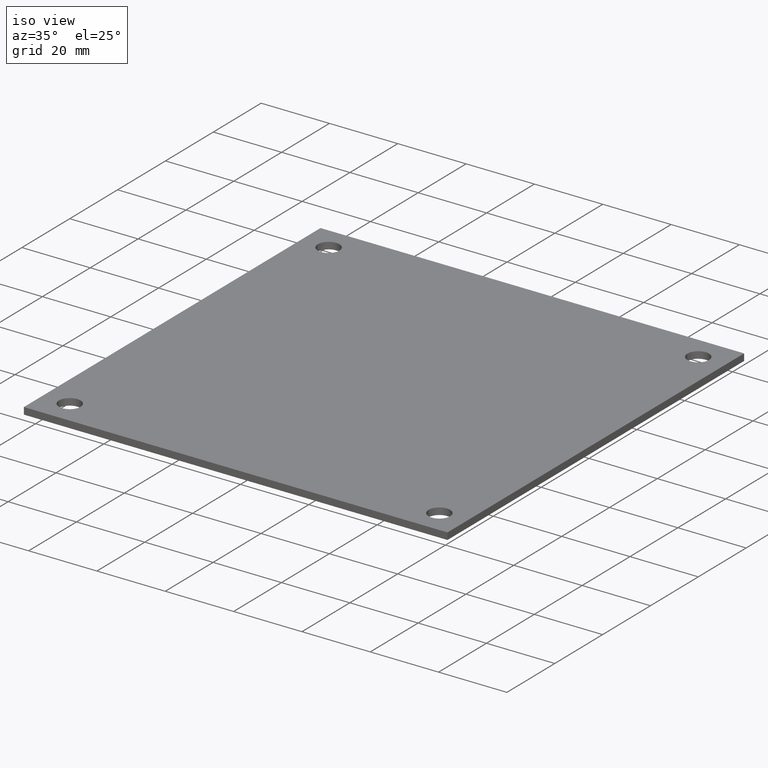
[diagram: clean part render]
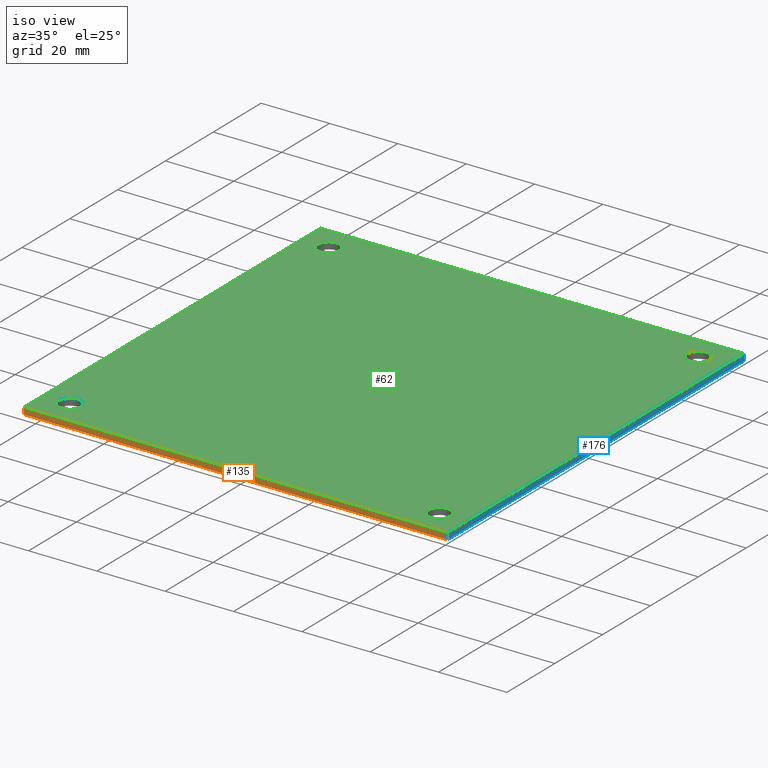
[diagram: same view with three faces highlighted in distinct colors, each labeled with its STEP entity id]
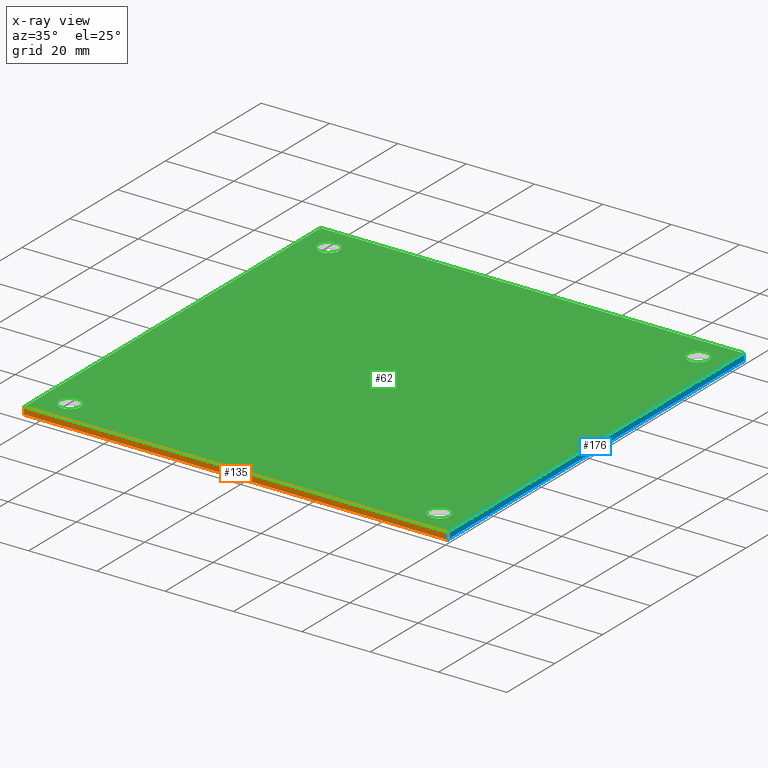
[diagram: x-ray of the same camera — body ghosted, the three highlighted faces saturated]
A machine part, iso view with three faces highlighted in distinct colors.
The next image is the same camera in x-ray (body ghosted, the three faces saturated) — at least one of them is partly hidden behind the body in this view.
Their STEP definitions:

[orange] entity #135 — the highlighted planar face has unit normal (0, 1, 0).
#67 = EDGE_CURVE ( 'NONE', #103, #107, #297, .T. ) ;
#68 = VERTEX_POINT ( 'NONE', #288 ) ;
#77 = VERTEX_POINT ( 'NONE', #363 ) ;
#93 = EDGE_CURVE ( 'NONE', #77, #68, #477, .T. ) ;
#103 = VERTEX_POINT ( 'NONE', #453 ) ;
#107 = VERTEX_POINT ( 'NONE', #358 ) ;
#123 = EDGE_CURVE ( 'NONE', #77, #103, #344, .T. ) ;
#129 = ORIENTED_EDGE ( 'NONE', *, *, #197, .F. ) ;
#130 = ORIENTED_EDGE ( 'NONE', *, *, #67, .T. ) ;
#131 = EDGE_LOOP ( 'NONE', ( #130, #129, #173, #180 ) ) ;
#135 = ADVANCED_FACE ( 'NONE', ( #430 ), #429, .F. ) ;
#173 = ORIENTED_EDGE ( 'NONE', *, *, #93, .F. ) ;
#180 = ORIENTED_EDGE ( 'NONE', *, *, #123, .T. ) ;
#197 = EDGE_CURVE ( 'NONE', #68, #107, #386, .T. ) ;
#288 = CARTESIAN_POINT ( 'NONE',  ( 62.00000000000000700, -61.99999999999999300, 2.000000000000000000 ) ) ;
#289 = DIRECTION ( 'NONE',  ( 1.000000000000000000, 0.0000000000000000000, 0.0000000000000000000 ) ) ;
#290 = VECTOR ( 'NONE', #289, 1000.000000000000000 ) ;
#291 = CARTESIAN_POINT ( 'NONE',  ( -62.00000000000000700, -61.99999999999999300, 0.0000000000000000000 ) ) ;
#297 = LINE ( 'NONE', #291, #290 ) ;
#342 = VECTOR ( 'NONE', #447, 1000.000000000000000 ) ;
#343 = CARTESIAN_POINT ( 'NONE',  ( -62.00000000000000700, -61.99999999999999300, 2.000000000000000000 ) ) ;
#344 = LINE ( 'NONE', #343, #342 ) ;
#358 = CARTESIAN_POINT ( 'NONE',  ( 62.00000000000000700, -61.99999999999999300, 0.0000000000000000000 ) ) ;
#363 = CARTESIAN_POINT ( 'NONE',  ( -62.00000000000000700, -61.99999999999999300, 2.000000000000000000 ) ) ;
#383 = DIRECTION ( 'NONE',  ( -0.0000000000000000000, -0.0000000000000000000, -1.000000000000000000 ) ) ;
#384 = VECTOR ( 'NONE', #383, 1000.000000000000000 ) ;
#385 = CARTESIAN_POINT ( 'NONE',  ( 62.00000000000000700, -61.99999999999999300, 2.000000000000000000 ) ) ;
#386 = LINE ( 'NONE', #385, #384 ) ;
#424 = DIRECTION ( 'NONE',  ( 0.0000000000000000000, -0.0000000000000000000, 1.000000000000000000 ) ) ;
#425 = DIRECTION ( 'NONE',  ( 0.0000000000000000000, 1.000000000000000000, 0.0000000000000000000 ) ) ;
#426 = CARTESIAN_POINT ( 'NONE',  ( -62.00000000000000700, -61.99999999999999300, 2.000000000000000000 ) ) ;
#428 = AXIS2_PLACEMENT_3D ( 'NONE', #426, #425, #424 ) ;
#429 = PLANE ( 'NONE',  #428 ) ;
#430 = FACE_OUTER_BOUND ( 'NONE', #131, .T. ) ;
#447 = DIRECTION ( 'NONE',  ( -0.0000000000000000000, -0.0000000000000000000, -1.000000000000000000 ) ) ;
#453 = CARTESIAN_POINT ( 'NONE',  ( -62.00000000000000700, -61.99999999999999300, 0.0000000000000000000 ) ) ;
#474 = DIRECTION ( 'NONE',  ( 1.000000000000000000, 0.0000000000000000000, 0.0000000000000000000 ) ) ;
#475 = VECTOR ( 'NONE', #474, 1000.000000000000000 ) ;
#476 = CARTESIAN_POINT ( 'NONE',  ( -62.00000000000000700, -61.99999999999999300, 2.000000000000000000 ) ) ;
#477 = LINE ( 'NONE', #476, #475 ) ;

[blue] entity #176 — the highlighted planar face has unit normal (-1, -0, 0).
#68 = VERTEX_POINT ( 'NONE', #288 ) ;
#71 = VERTEX_POINT ( 'NONE', #282 ) ;
#76 = EDGE_CURVE ( 'NONE', #68, #71, #331, .T. ) ;
#90 = EDGE_CURVE ( 'NONE', #107, #106, #481, .T. ) ;
#106 = VERTEX_POINT ( 'NONE', #448 ) ;
#107 = VERTEX_POINT ( 'NONE', #358 ) ;
#150 = EDGE_LOOP ( 'NONE', ( #151, #152, #154, #155 ) ) ;
#151 = ORIENTED_EDGE ( 'NONE', *, *, #90, .T. ) ;
#152 = ORIENTED_EDGE ( 'NONE', *, *, #153, .F. ) ;
#153 = EDGE_CURVE ( 'NONE', #71, #106, #418, .T. ) ;
#154 = ORIENTED_EDGE ( 'NONE', *, *, #76, .F. ) ;
#155 = ORIENTED_EDGE ( 'NONE', *, *, #197, .T. ) ;
#176 = ADVANCED_FACE ( 'NONE', ( #398 ), #397, .F. ) ;
#197 = EDGE_CURVE ( 'NONE', #68, #107, #386, .T. ) ;
#282 = CARTESIAN_POINT ( 'NONE',  ( 62.00000000000000000, 62.00000000000000000, 2.000000000000000000 ) ) ;
#288 = CARTESIAN_POINT ( 'NONE',  ( 62.00000000000000700, -61.99999999999999300, 2.000000000000000000 ) ) ;
#329 = VECTOR ( 'NONE', #364, 1000.000000000000000 ) ;
#330 = CARTESIAN_POINT ( 'NONE',  ( 62.00000000000000000, 62.00000000000000000, 2.000000000000000000 ) ) ;
#331 = LINE ( 'NONE', #330, #329 ) ;
#358 = CARTESIAN_POINT ( 'NONE',  ( 62.00000000000000700, -61.99999999999999300, 0.0000000000000000000 ) ) ;
#364 = DIRECTION ( 'NONE',  ( -5.595882180570345400E-017, 1.000000000000000000, -0.0000000000000000000 ) ) ;
#383 = DIRECTION ( 'NONE',  ( -0.0000000000000000000, -0.0000000000000000000, -1.000000000000000000 ) ) ;
#384 = VECTOR ( 'NONE', #383, 1000.000000000000000 ) ;
#385 = CARTESIAN_POINT ( 'NONE',  ( 62.00000000000000700, -61.99999999999999300, 2.000000000000000000 ) ) ;
#386 = LINE ( 'NONE', #385, #384 ) ;
#393 = DIRECTION ( 'NONE',  ( 5.595882180570345400E-017, -1.000000000000000000, 0.0000000000000000000 ) ) ;
#394 = DIRECTION ( 'NONE',  ( -1.000000000000000000, -5.595882180570345400E-017, 0.0000000000000000000 ) ) ;
#395 = CARTESIAN_POINT ( 'NONE',  ( 62.00000000000000000, 62.00000000000000000, 2.000000000000000000 ) ) ;
#396 = AXIS2_PLACEMENT_3D ( 'NONE', #395, #394, #393 ) ;
#397 = PLANE ( 'NONE',  #396 ) ;
#398 = FACE_OUTER_BOUND ( 'NONE', #150, .T. ) ;
#415 = VECTOR ( 'NONE', #416, 1000.000000000000000 ) ;
#416 = DIRECTION ( 'NONE',  ( -0.0000000000000000000, -0.0000000000000000000, -1.000000000000000000 ) ) ;
#417 = CARTESIAN_POINT ( 'NONE',  ( 62.00000000000000000, 62.00000000000000000, 2.000000000000000000 ) ) ;
#418 = LINE ( 'NONE', #417, #415 ) ;
#448 = CARTESIAN_POINT ( 'NONE',  ( 62.00000000000000000, 62.00000000000000000, 0.0000000000000000000 ) ) ;
#478 = DIRECTION ( 'NONE',  ( -5.595882180570345400E-017, 1.000000000000000000, -0.0000000000000000000 ) ) ;
#479 = VECTOR ( 'NONE', #478, 1000.000000000000000 ) ;
#480 = CARTESIAN_POINT ( 'NONE',  ( 62.00000000000000000, 62.00000000000000000, 0.0000000000000000000 ) ) ;
#481 = LINE ( 'NONE', #480, #479 ) ;

[green] entity #62 — the highlighted planar face has unit normal (0, 0, 1).
#3 = VERTEX_POINT ( 'NONE', #182 ) ;
#8 = VERTEX_POINT ( 'NONE', #164 ) ;
#13 = EDGE_CURVE ( 'NONE', #61, #8, #190, .T. ) ;
#19 = VERTEX_POINT ( 'NONE', #220 ) ;
#24 = EDGE_CURVE ( 'NONE', #19, #3, #201, .T. ) ;
#25 = VERTEX_POINT ( 'NONE', #274 ) ;
#37 = EDGE_CURVE ( 'NONE', #38, #111, #223, .T. ) ;
#38 = VERTEX_POINT ( 'NONE', #252 ) ;
#40 = EDGE_LOOP ( 'NONE', ( #108, #78, #75, #84 ) ) ;
#41 = VERTEX_POINT ( 'NONE', #251 ) ;
#44 = ORIENTED_EDGE ( 'NONE', *, *, #45, .F. ) ;
#45 = EDGE_CURVE ( 'NONE', #3, #19, #244, .T. ) ;
#47 = EDGE_CURVE ( 'NONE', #41, #25, #314, .T. ) ;
#55 = ORIENTED_EDGE ( 'NONE', *, *, #13, .F. ) ;
#56 = ORIENTED_EDGE ( 'NONE', *, *, #63, .F. ) ;
#57 = EDGE_LOOP ( 'NONE', ( #55, #56 ) ) ;
#58 = EDGE_LOOP ( 'NONE', ( #60, #44 ) ) ;
#60 = ORIENTED_EDGE ( 'NONE', *, *, #24, .F. ) ;
#61 = VERTEX_POINT ( 'NONE', #312 ) ;
#62 = ADVANCED_FACE ( 'NONE', ( #311, #308, #307, #306, #305 ), #303, .T. ) ;
#63 = EDGE_CURVE ( 'NONE', #8, #61, #296, .T. ) ;
#68 = VERTEX_POINT ( 'NONE', #288 ) ;
#71 = VERTEX_POINT ( 'NONE', #282 ) ;
#72 = EDGE_CURVE ( 'NONE', #83, #77, #185, .T. ) ;
#75 = ORIENTED_EDGE ( 'NONE', *, *, #76, .T. ) ;
#76 = EDGE_CURVE ( 'NONE', #68, #71, #331, .T. ) ;
#77 = VERTEX_POINT ( 'NONE', #363 ) ;
#78 = ORIENTED_EDGE ( 'NONE', *, *, #93, .T. ) ;
#79 = EDGE_CURVE ( 'NONE', #25, #41, #333, .T. ) ;
#80 = ORIENTED_EDGE ( 'NONE', *, *, #47, .F. ) ;
#81 = ORIENTED_EDGE ( 'NONE', *, *, #79, .F. ) ;
#82 = EDGE_LOOP ( 'NONE', ( #80, #81 ) ) ;
#83 = VERTEX_POINT ( 'NONE', #338 ) ;
#84 = ORIENTED_EDGE ( 'NONE', *, *, #85, .T. ) ;
#85 = EDGE_CURVE ( 'NONE', #71, #83, #337, .T. ) ;
#88 = EDGE_LOOP ( 'NONE', ( #94, #95 ) ) ;
#93 = EDGE_CURVE ( 'NONE', #77, #68, #477, .T. ) ;
#94 = ORIENTED_EDGE ( 'NONE', *, *, #37, .F. ) ;
#95 = ORIENTED_EDGE ( 'NONE', *, *, #96, .F. ) ;
#96 = EDGE_CURVE ( 'NONE', #111, #38, #473, .T. ) ;
#108 = ORIENTED_EDGE ( 'NONE', *, *, #72, .T. ) ;
#111 = VERTEX_POINT ( 'NONE', #356 ) ;
#149 = DIRECTION ( 'NONE',  ( 1.000000000000000000, 0.0000000000000000000, 0.0000000000000000000 ) ) ;
#164 = CARTESIAN_POINT ( 'NONE',  ( -50.92499999999999700, -54.10000000000000900, 2.000000000000000000 ) ) ;
#182 = CARTESIAN_POINT ( 'NONE',  ( 57.27500000000000600, 54.10000000000000900, 2.000000000000000000 ) ) ;
#183 = DIRECTION ( 'NONE',  ( -1.119176436114069100E-016, -1.000000000000000000, 0.0000000000000000000 ) ) ;
#184 = CARTESIAN_POINT ( 'NONE',  ( -61.99999999999999300, 62.00000000000000700, 2.000000000000000000 ) ) ;
#185 = LINE ( 'NONE', #184, #245 ) ;
#186 = DIRECTION ( 'NONE',  ( 1.000000000000000000, 0.0000000000000000000, 0.0000000000000000000 ) ) ;
#187 = DIRECTION ( 'NONE',  ( 0.0000000000000000000, 0.0000000000000000000, 1.000000000000000000 ) ) ;
#188 = CARTESIAN_POINT ( 'NONE',  ( -54.09999999999999400, -54.10000000000000900, 2.000000000000000000 ) ) ;
#189 = AXIS2_PLACEMENT_3D ( 'NONE', #188, #187, #186 ) ;
#190 = CIRCLE ( 'NONE', #189, 3.174999999999997200 ) ;
#201 = CIRCLE ( 'NONE', #273, 3.174999999999997200 ) ;
#220 = CARTESIAN_POINT ( 'NONE',  ( 50.92500000000001100, 54.10000000000000900, 2.000000000000000000 ) ) ;
#223 = CIRCLE ( 'NONE', #256, 3.174999999999997200 ) ;
#241 = DIRECTION ( 'NONE',  ( 0.0000000000000000000, 0.0000000000000000000, 1.000000000000000000 ) ) ;
#242 = CARTESIAN_POINT ( 'NONE',  ( 54.10000000000000900, 54.10000000000000900, 2.000000000000000000 ) ) ;
#243 = AXIS2_PLACEMENT_3D ( 'NONE', #242, #241, #149 ) ;
#244 = CIRCLE ( 'NONE', #243, 3.174999999999997200 ) ;
#245 = VECTOR ( 'NONE', #183, 1000.000000000000000 ) ;
#251 = CARTESIAN_POINT ( 'NONE',  ( -57.27499999999999100, 54.10000000000000900, 2.000000000000000000 ) ) ;
#252 = CARTESIAN_POINT ( 'NONE',  ( 50.92500000000001800, -54.10000000000000900, 2.000000000000000000 ) ) ;
#253 = DIRECTION ( 'NONE',  ( 1.000000000000000000, 0.0000000000000000000, 0.0000000000000000000 ) ) ;
#254 = DIRECTION ( 'NONE',  ( 0.0000000000000000000, 0.0000000000000000000, 1.000000000000000000 ) ) ;
#255 = CARTESIAN_POINT ( 'NONE',  ( 54.10000000000001600, -54.10000000000000900, 2.000000000000000000 ) ) ;
#256 = AXIS2_PLACEMENT_3D ( 'NONE', #255, #254, #253 ) ;
#270 = DIRECTION ( 'NONE',  ( 1.000000000000000000, 0.0000000000000000000, 0.0000000000000000000 ) ) ;
#271 = DIRECTION ( 'NONE',  ( 0.0000000000000000000, 0.0000000000000000000, 1.000000000000000000 ) ) ;
#272 = CARTESIAN_POINT ( 'NONE',  ( 54.10000000000000900, 54.10000000000000900, 2.000000000000000000 ) ) ;
#273 = AXIS2_PLACEMENT_3D ( 'NONE', #272, #271, #270 ) ;
#274 = CARTESIAN_POINT ( 'NONE',  ( -50.92499999999999700, 54.10000000000000900, 2.000000000000000000 ) ) ;
#282 = CARTESIAN_POINT ( 'NONE',  ( 62.00000000000000000, 62.00000000000000000, 2.000000000000000000 ) ) ;
#288 = CARTESIAN_POINT ( 'NONE',  ( 62.00000000000000700, -61.99999999999999300, 2.000000000000000000 ) ) ;
#292 = DIRECTION ( 'NONE',  ( 1.000000000000000000, 0.0000000000000000000, 0.0000000000000000000 ) ) ;
#293 = DIRECTION ( 'NONE',  ( 1.000000000000000000, 0.0000000000000000000, 0.0000000000000000000 ) ) ;
#294 = DIRECTION ( 'NONE',  ( 0.0000000000000000000, 0.0000000000000000000, 1.000000000000000000 ) ) ;
#295 = AXIS2_PLACEMENT_3D ( 'NONE', #301, #294, #293 ) ;
#296 = CIRCLE ( 'NONE', #295, 3.174999999999997200 ) ;
#298 = DIRECTION ( 'NONE',  ( 1.000000000000000000, 0.0000000000000000000, -0.0000000000000000000 ) ) ;
#299 = DIRECTION ( 'NONE',  ( 0.0000000000000000000, 0.0000000000000000000, 1.000000000000000000 ) ) ;
#300 = CARTESIAN_POINT ( 'NONE',  ( -61.99999999999999300, 62.00000000000000700, 2.000000000000000000 ) ) ;
#301 = CARTESIAN_POINT ( 'NONE',  ( -54.09999999999999400, -54.10000000000000900, 2.000000000000000000 ) ) ;
#302 = AXIS2_PLACEMENT_3D ( 'NONE', #300, #299, #298 ) ;
#303 = PLANE ( 'NONE',  #302 ) ;
#304 = CARTESIAN_POINT ( 'NONE',  ( -54.09999999999999400, 54.10000000000000900, 2.000000000000000000 ) ) ;
#305 = FACE_BOUND ( 'NONE', #88, .T. ) ;
#306 = FACE_BOUND ( 'NONE', #82, .T. ) ;
#307 = FACE_OUTER_BOUND ( 'NONE', #40, .T. ) ;
#308 = FACE_BOUND ( 'NONE', #58, .T. ) ;
#311 = FACE_BOUND ( 'NONE', #57, .T. ) ;
#312 = CARTESIAN_POINT ( 'NONE',  ( -57.27499999999999100, -54.10000000000000900, 2.000000000000000000 ) ) ;
#314 = CIRCLE ( 'NONE', #318, 3.174999999999997200 ) ;
#318 = AXIS2_PLACEMENT_3D ( 'NONE', #304, #328, #292 ) ;
#328 = DIRECTION ( 'NONE',  ( 0.0000000000000000000, 0.0000000000000000000, 1.000000000000000000 ) ) ;
#329 = VECTOR ( 'NONE', #364, 1000.000000000000000 ) ;
#330 = CARTESIAN_POINT ( 'NONE',  ( 62.00000000000000000, 62.00000000000000000, 2.000000000000000000 ) ) ;
#331 = LINE ( 'NONE', #330, #329 ) ;
#332 = AXIS2_PLACEMENT_3D ( 'NONE', #341, #340, #339 ) ;
#333 = CIRCLE ( 'NONE', #332, 3.174999999999997200 ) ;
#335 = VECTOR ( 'NONE', #482, 1000.000000000000000 ) ;
#336 = CARTESIAN_POINT ( 'NONE',  ( -61.99999999999999300, 62.00000000000000700, 2.000000000000000000 ) ) ;
#337 = LINE ( 'NONE', #336, #335 ) ;
#338 = CARTESIAN_POINT ( 'NONE',  ( -61.99999999999999300, 62.00000000000000700, 2.000000000000000000 ) ) ;
#339 = DIRECTION ( 'NONE',  ( 1.000000000000000000, 0.0000000000000000000, 0.0000000000000000000 ) ) ;
#340 = DIRECTION ( 'NONE',  ( 0.0000000000000000000, 0.0000000000000000000, 1.000000000000000000 ) ) ;
#341 = CARTESIAN_POINT ( 'NONE',  ( -54.09999999999999400, 54.10000000000000900, 2.000000000000000000 ) ) ;
#356 = CARTESIAN_POINT ( 'NONE',  ( 57.27500000000001300, -54.10000000000000900, 2.000000000000000000 ) ) ;
#363 = CARTESIAN_POINT ( 'NONE',  ( -62.00000000000000700, -61.99999999999999300, 2.000000000000000000 ) ) ;
#364 = DIRECTION ( 'NONE',  ( -5.595882180570345400E-017, 1.000000000000000000, -0.0000000000000000000 ) ) ;
#469 = DIRECTION ( 'NONE',  ( 1.000000000000000000, 0.0000000000000000000, 0.0000000000000000000 ) ) ;
#470 = DIRECTION ( 'NONE',  ( 0.0000000000000000000, 0.0000000000000000000, 1.000000000000000000 ) ) ;
#471 = CARTESIAN_POINT ( 'NONE',  ( 54.10000000000001600, -54.10000000000000900, 2.000000000000000000 ) ) ;
#472 = AXIS2_PLACEMENT_3D ( 'NONE', #471, #470, #469 ) ;
#473 = CIRCLE ( 'NONE', #472, 3.174999999999997200 ) ;
#474 = DIRECTION ( 'NONE',  ( 1.000000000000000000, 0.0000000000000000000, 0.0000000000000000000 ) ) ;
#475 = VECTOR ( 'NONE', #474, 1000.000000000000000 ) ;
#476 = CARTESIAN_POINT ( 'NONE',  ( -62.00000000000000700, -61.99999999999999300, 2.000000000000000000 ) ) ;
#477 = LINE ( 'NONE', #476, #475 ) ;
#482 = DIRECTION ( 'NONE',  ( -1.000000000000000000, 5.595882180570345400E-017, -0.0000000000000000000 ) ) ;